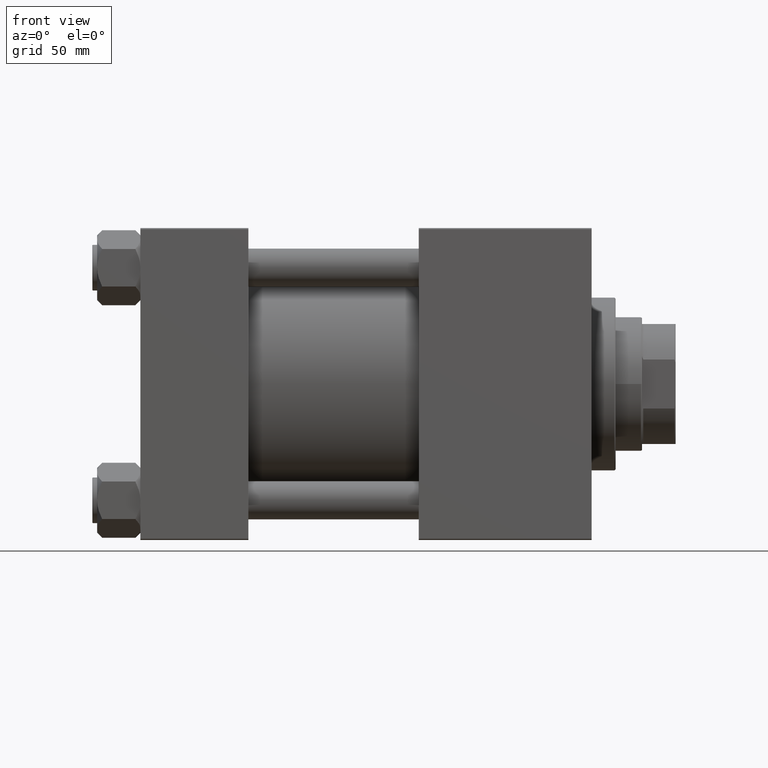
[diagram: clean part render]
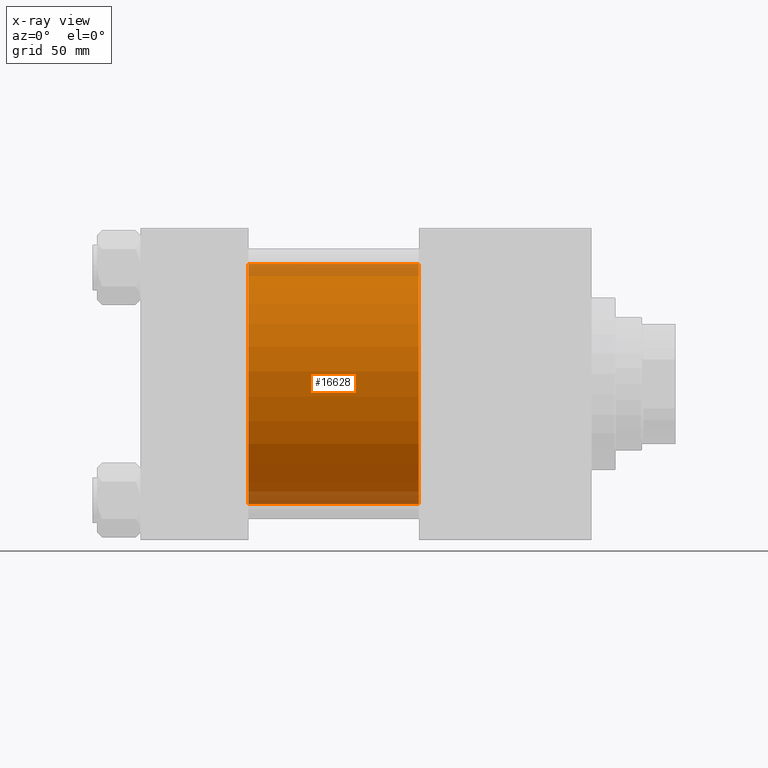
[diagram: x-ray — body ghosted, one internal face saturated and labeled with its STEP entity id]
A machine part, front view, then the same camera in x-ray: the body is ghosted and one INTERNAL B-rep face — a face not visible from any outside direction — is saturated and labeled: STEP entity #16628.
In plain terms, the highlighted cylindrical surface (partial cylindrical patch) has radius 50 mm, axis along (-1, -0, -0).
Its self-contained STEP definition (entity closure, byte-faithful):
#562 = AXIS2_PLACEMENT_3D ( 'NONE', #44544, #20938, #21909 ) ;
#1366 = LINE ( 'NONE', #17525, #47723 ) ;
#2475 = CARTESIAN_POINT ( 'NONE',  ( 115.9999999999999858, 3.521148781771555838E-15, -50.00000000000000000 ) ) ;
#2829 = FACE_OUTER_BOUND ( 'NONE', #27624, .T. ) ;
#4969 = DIRECTION ( 'NONE',  ( -1.000000000000000000, -0.000000000000000000, -0.000000000000000000 ) ) ;
#8625 = CARTESIAN_POINT ( 'NONE',  ( 45.00000000000000000, -2.602085213965210642E-15, 50.00000000000000000 ) ) ;
#10241 = VERTEX_POINT ( 'NONE', #2475 ) ;
#13411 = EDGE_CURVE ( 'NONE', #48758, #43016, #39405, .T. ) ;
#14419 = VERTEX_POINT ( 'NONE', #48673 ) ;
#16628 = ADVANCED_FACE ( 'NONE', ( #2829 ), #38757, .F. ) ;
#17525 = CARTESIAN_POINT ( 'NONE',  ( 115.9999999999999858, 3.521148781771555838E-15, -50.00000000000000000 ) ) ;
#20312 = DIRECTION ( 'NONE',  ( 0.000000000000000000, 0.000000000000000000, -1.000000000000000000 ) ) ;
#20938 = DIRECTION ( 'NONE',  ( 1.000000000000000000, 0.000000000000000000, 0.000000000000000000 ) ) ;
#21909 = DIRECTION ( 'NONE',  ( 0.000000000000000000, 0.000000000000000000, -1.000000000000000000 ) ) ;
#22058 = DIRECTION ( 'NONE',  ( 0.000000000000000000, 0.000000000000000000, 1.000000000000000000 ) ) ;
#22312 = EDGE_CURVE ( 'NONE', #10241, #43016, #1366, .T. ) ;
#22347 = LINE ( 'NONE', #38013, #29923 ) ;
#22657 = CIRCLE ( 'NONE', #562, 50.00000000000000000 ) ;
#23094 = AXIS2_PLACEMENT_3D ( 'NONE', #30534, #50294, #22058 ) ;
#24122 = CARTESIAN_POINT ( 'NONE',  ( 45.00000000000000000, 3.521148781771555838E-15, -50.00000000000000000 ) ) ;
#27624 = EDGE_LOOP ( 'NONE', ( #44822, #47635, #47509, #46070 ) ) ;
#29923 = VECTOR ( 'NONE', #34145, 1000.000000000000000 ) ;
#30534 = CARTESIAN_POINT ( 'NONE',  ( 115.9999999999999858, -2.602085213965210642E-15, 0.000000000000000000 ) ) ;
#31196 = AXIS2_PLACEMENT_3D ( 'NONE', #36554, #32117, #20312 ) ;
#32117 = DIRECTION ( 'NONE',  ( 1.000000000000000000, 0.000000000000000000, 0.000000000000000000 ) ) ;
#33208 = EDGE_CURVE ( 'NONE', #14419, #48758, #22347, .T. ) ;
#34145 = DIRECTION ( 'NONE',  ( -1.000000000000000000, -0.000000000000000000, -0.000000000000000000 ) ) ;
#36554 = CARTESIAN_POINT ( 'NONE',  ( 45.00000000000000000, -2.602085213965210642E-15, 0.000000000000000000 ) ) ;
#36601 = EDGE_CURVE ( 'NONE', #14419, #10241, #22657, .T. ) ;
#38013 = CARTESIAN_POINT ( 'NONE',  ( 115.9999999999999858, -2.602085213965210642E-15, 50.00000000000000000 ) ) ;
#38757 = CYLINDRICAL_SURFACE ( 'NONE', #23094, 50.00000000000000000 ) ;
#39405 = CIRCLE ( 'NONE', #31196, 50.00000000000000000 ) ;
#43016 = VERTEX_POINT ( 'NONE', #24122 ) ;
#44544 = CARTESIAN_POINT ( 'NONE',  ( 115.9999999999999858, -2.602085213965210642E-15, 0.000000000000000000 ) ) ;
#44822 = ORIENTED_EDGE ( 'NONE', *, *, #36601, .T. ) ;
#46070 = ORIENTED_EDGE ( 'NONE', *, *, #33208, .F. ) ;
#47509 = ORIENTED_EDGE ( 'NONE', *, *, #13411, .F. ) ;
#47635 = ORIENTED_EDGE ( 'NONE', *, *, #22312, .T. ) ;
#47723 = VECTOR ( 'NONE', #4969, 1000.000000000000000 ) ;
#48673 = CARTESIAN_POINT ( 'NONE',  ( 115.9999999999999858, -2.602085213965210642E-15, 50.00000000000000000 ) ) ;
#48758 = VERTEX_POINT ( 'NONE', #8625 ) ;
#50294 = DIRECTION ( 'NONE',  ( -1.000000000000000000, -0.000000000000000000, -0.000000000000000000 ) ) ;